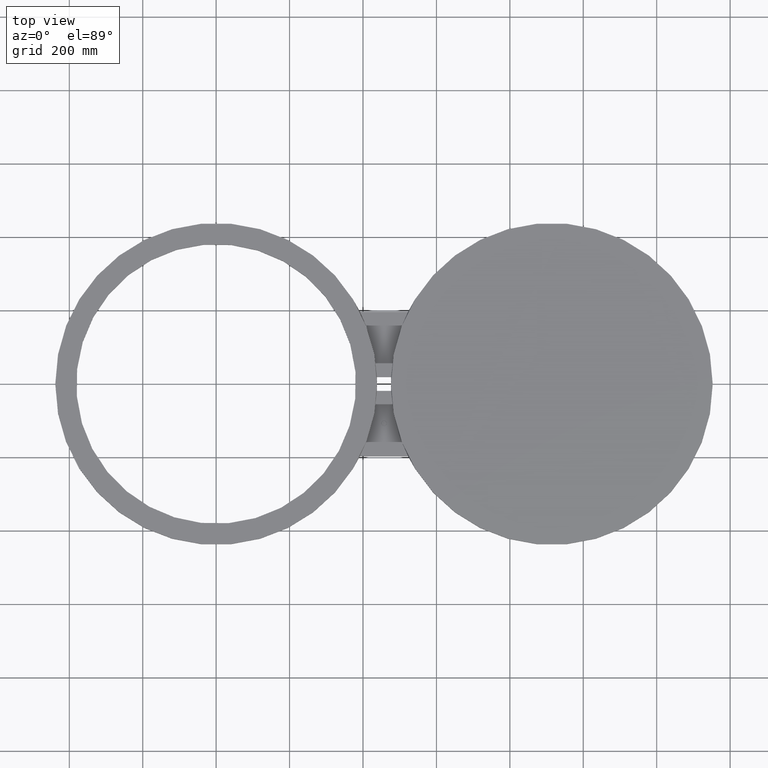
[diagram: clean part render]
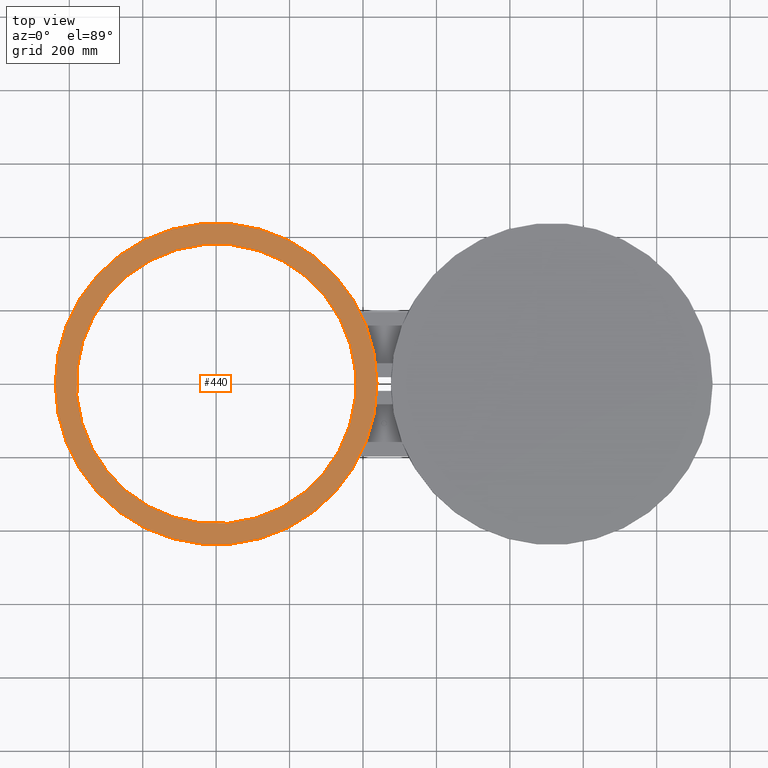
[diagram: same view with one face highlighted and labeled with its STEP entity id]
A machine part, top view. The second image highlights one B-rep face of the part: STEP entity #440.
In plain terms, the highlighted planar face has unit normal (0, 0, 1).
Its self-contained STEP definition (entity closure, byte-faithful):
#139=AXIS2_PLACEMENT_3D('Circle Axis2P3D',#137,#138,$) ;
#290=AXIS2_PLACEMENT_3D('Plane Axis2P3D',#287,#288,#289) ;
#380=AXIS2_PLACEMENT_3D('Circle Axis2P3D',#378,#379,$) ;
#417=AXIS2_PLACEMENT_3D('Circle Axis2P3D',#415,#416,$) ;
#433=AXIS2_PLACEMENT_3D('Circle Axis2P3D',#431,#432,$) ;
#120=CARTESIAN_POINT('Vertex',(-17.2500000001,2.11251572854E-015,0.812500000003)) ;
#134=CARTESIAN_POINT('Vertex',(17.2500000001,0.,0.812500000003)) ;
#137=CARTESIAN_POINT('Axis2P3D Location',(0.,0.,0.812500000003)) ;
#287=CARTESIAN_POINT('Axis2P3D Location',(0.,0.,0.812500000003)) ;
#378=CARTESIAN_POINT('Axis2P3D Location',(0.,0.,0.812500000003)) ;
#405=CARTESIAN_POINT('Vertex',(13.1637384284,-7.19138307909,0.812500000003)) ;
#412=CARTESIAN_POINT('Vertex',(-13.1637384284,7.19138307909,0.812500000003)) ;
#415=CARTESIAN_POINT('Axis2P3D Location',(8.52336574023E-017,-6.99353086378E-017,0.812500000003)) ;
#431=CARTESIAN_POINT('Axis2P3D Location',(2.23792987641E-015,-4.47585975282E-015,0.812500000003)) ;
#138=DIRECTION('Axis2P3D Direction',(0.,0.,0.0393700787402)) ;
#288=DIRECTION('Axis2P3D Direction',(0.,0.,0.0393700787402)) ;
#289=DIRECTION('Axis2P3D XDirection',(0.0393700787402,0.,0.)) ;
#379=DIRECTION('Axis2P3D Direction',(0.,0.,0.0393700787402)) ;
#416=DIRECTION('Axis2P3D Direction',(0.,-0.,-0.0393700787402)) ;
#432=DIRECTION('Axis2P3D Direction',(0.,0.,0.0393700787402)) ;
#428=ORIENTED_EDGE('',*,*,#382,.T.) ;
#429=ORIENTED_EDGE('',*,*,#141,.T.) ;
#437=ORIENTED_EDGE('',*,*,#419,.F.) ;
#438=ORIENTED_EDGE('',*,*,#435,.F.) ;
#439=FACE_BOUND('',#436,.T.) ;
#440=ADVANCED_FACE('PartBody',(#430,#439),#291,.T.) ;
#140=CIRCLE('generated circle',#139,17.2500000001) ;
#381=CIRCLE('generated circle',#380,17.2500000001) ;
#418=CIRCLE('generated circle',#417,15.0000000001) ;
#434=CIRCLE('generated circle',#433,15.0000000001) ;
#141=EDGE_CURVE('',#121,#135,#140,.T.) ;
#382=EDGE_CURVE('',#135,#121,#381,.T.) ;
#419=EDGE_CURVE('',#413,#406,#418,.F.) ;
#435=EDGE_CURVE('',#406,#413,#434,.T.) ;
#427=EDGE_LOOP('',(#428,#429)) ;
#436=EDGE_LOOP('',(#437,#438)) ;
#430=FACE_OUTER_BOUND('',#427,.T.) ;
#291=PLANE('',#290) ;
#121=VERTEX_POINT('',#120) ;
#135=VERTEX_POINT('',#134) ;
#406=VERTEX_POINT('',#405) ;
#413=VERTEX_POINT('',#412) ;